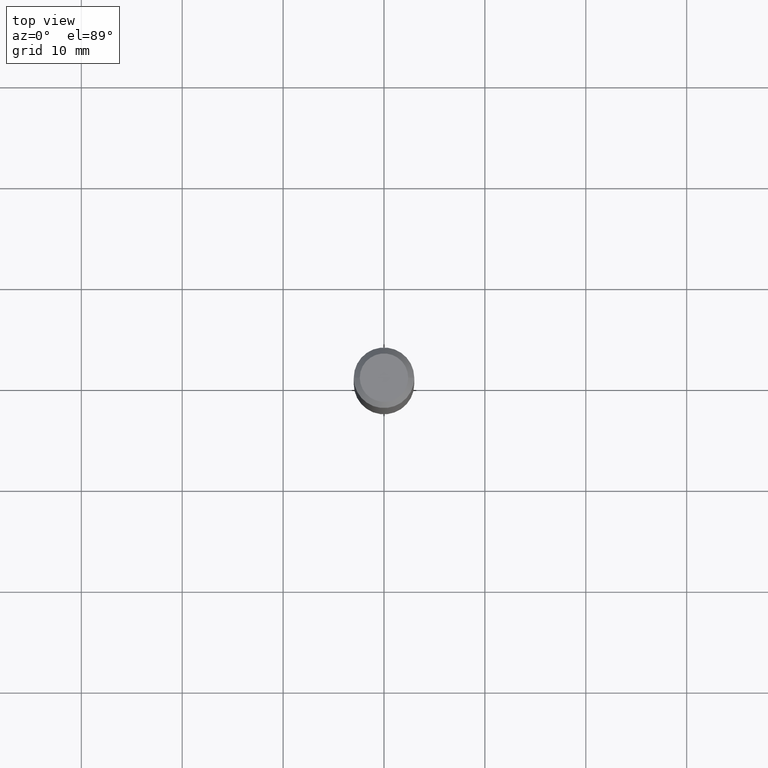
[diagram: clean part render]
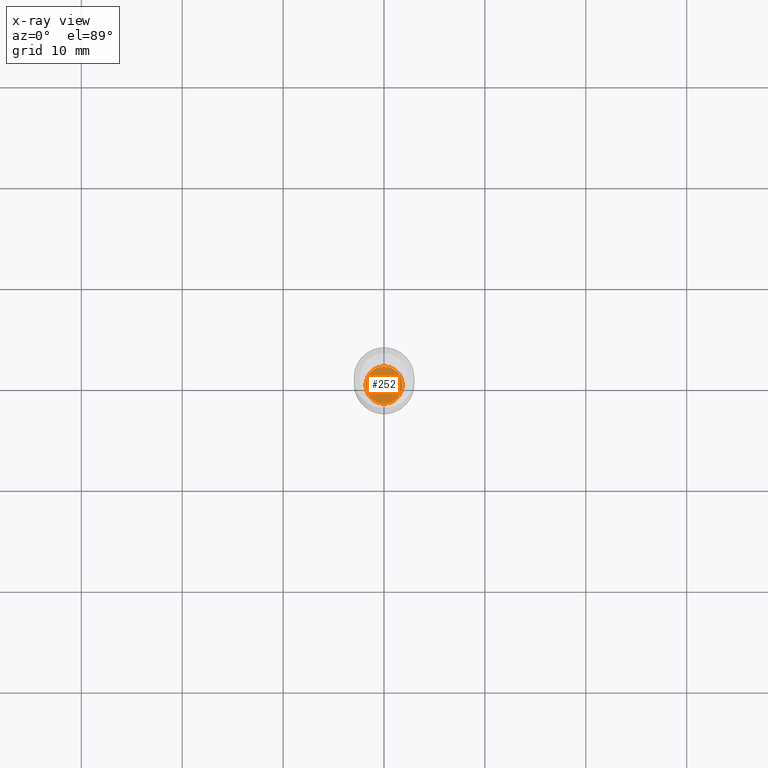
[diagram: x-ray — body ghosted, one internal face saturated and labeled with its STEP entity id]
A machine part, top view, then the same camera in x-ray: the body is ghosted and one INTERNAL B-rep face — a face not visible from any outside direction — is saturated and labeled: STEP entity #252.
In plain terms, the highlighted planar face has unit normal (-0, 0, 1).
Its self-contained STEP definition (entity closure, byte-faithful):
#73 = ORIENTED_EDGE ( 'NONE', *, *, #102, .F. ) ;
#102 = EDGE_CURVE ( 'NONE', #112, #161, #377, .T. ) ;
#103 = CARTESIAN_POINT ( 'NONE',  ( 4.139934141990817236E-29, -5.910728758527560286E-15, -1.692899999999999849 ) ) ;
#112 = VERTEX_POINT ( 'NONE', #470 ) ;
#118 = AXIS2_PLACEMENT_3D ( 'NONE', #103, #337, #412 ) ;
#121 = EDGE_LOOP ( 'NONE', ( #349, #73 ) ) ;
#123 = EDGE_CURVE ( 'NONE', #161, #112, #203, .T. ) ;
#139 = DIRECTION ( 'NONE',  ( -2.445468806185136597E-29, 3.491481338843145583E-15, 1.000000000000000000 ) ) ;
#161 = VERTEX_POINT ( 'NONE', #391 ) ;
#203 = CIRCLE ( 'NONE', #232, 0.07234999999999999765 ) ;
#215 = PLANE ( 'NONE',  #118 ) ;
#232 = AXIS2_PLACEMENT_3D ( 'NONE', #241, #139, #323 ) ;
#241 = CARTESIAN_POINT ( 'NONE',  ( 4.139934141990817236E-29, -5.910728758527560286E-15, -1.692899999999999849 ) ) ;
#252 = ADVANCED_FACE ( 'NONE', ( #259 ), #215, .F. ) ;
#259 = FACE_OUTER_BOUND ( 'NONE', #121, .T. ) ;
#323 = DIRECTION ( 'NONE',  ( 1.000000000000000000, -6.982962677686272233E-15, 0.000000000000000000 ) ) ;
#337 = DIRECTION ( 'NONE',  ( -2.438088387897960049E-29, 3.491481338843145188E-15, 1.000000000000000000 ) ) ;
#349 = ORIENTED_EDGE ( 'NONE', *, *, #123, .F. ) ;
#377 = CIRCLE ( 'NONE', #449, 0.07234999999999999765 ) ;
#391 = CARTESIAN_POINT ( 'NONE',  ( 0.07234999999999999765, -6.415946108258162351E-15, -1.692899999999999849 ) ) ;
#394 = CARTESIAN_POINT ( 'NONE',  ( 4.139934141990817236E-29, -5.910728758527560286E-15, -1.692899999999999849 ) ) ;
#412 = DIRECTION ( 'NONE',  ( 1.000000000000000000, -6.982962677686265922E-15, 4.876176775795935793E-29 ) ) ;
#431 = DIRECTION ( 'NONE',  ( 1.000000000000000000, -6.982962677686272233E-15, 0.000000000000000000 ) ) ;
#449 = AXIS2_PLACEMENT_3D ( 'NONE', #394, #474, #431 ) ;
#470 = CARTESIAN_POINT ( 'NONE',  ( -0.07234999999999999765, -5.394001862031017209E-15, -1.692899999999999849 ) ) ;
#474 = DIRECTION ( 'NONE',  ( -2.445468806185136597E-29, 3.491481338843145583E-15, 1.000000000000000000 ) ) ;